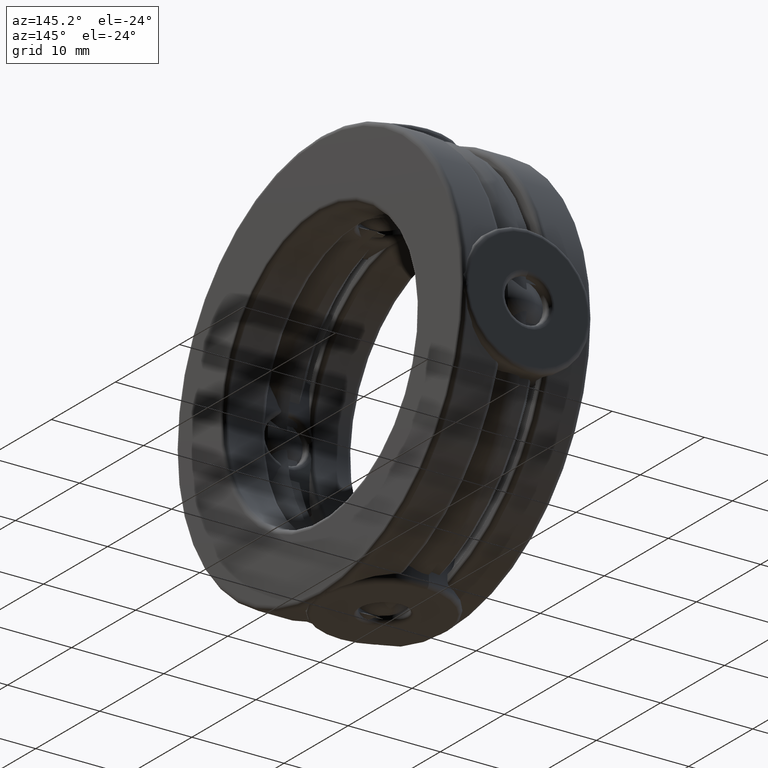
[diagram: clean part render]
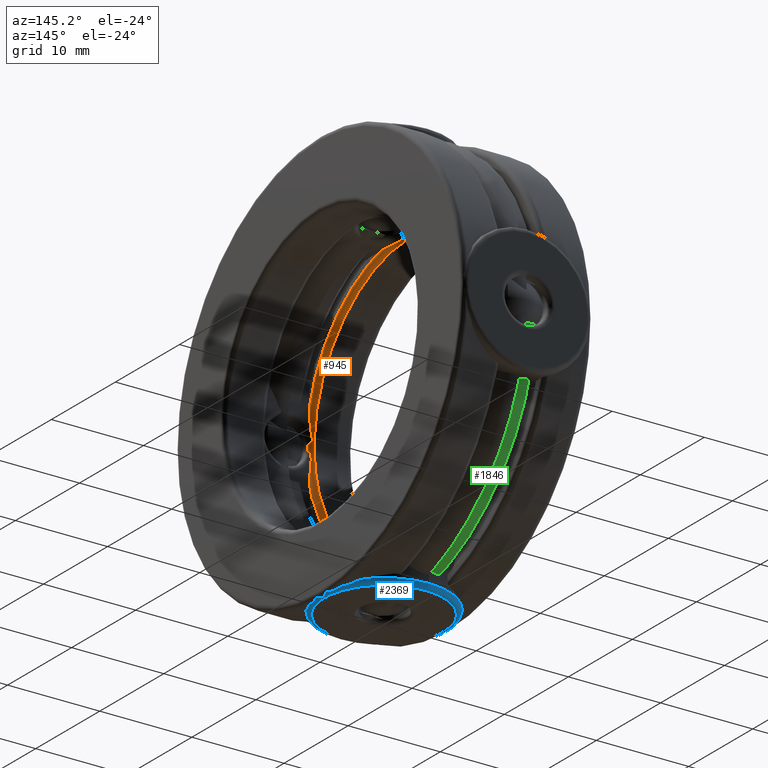
[diagram: same view with three faces highlighted in distinct colors, each labeled with its STEP entity id]
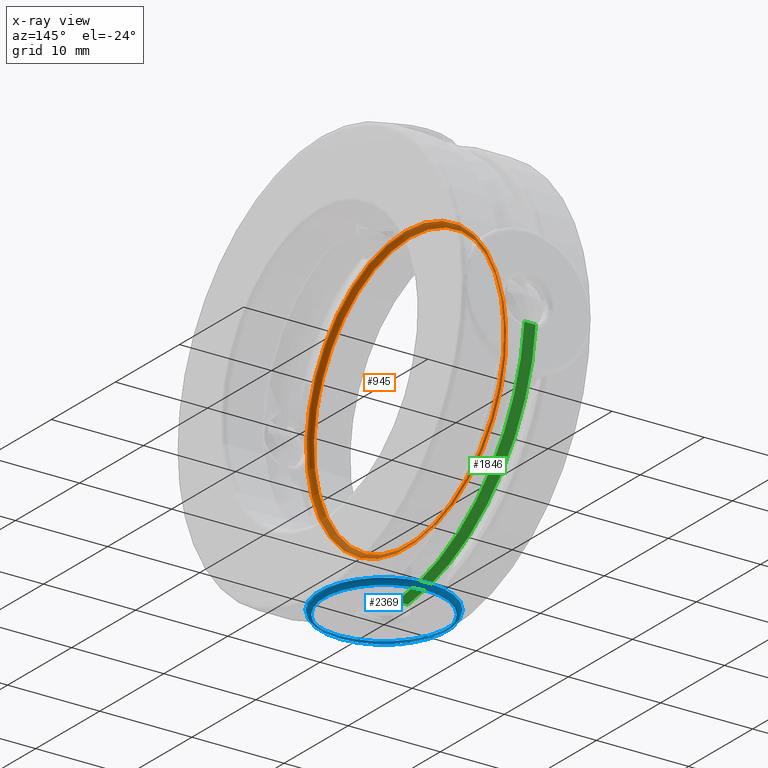
[diagram: x-ray of the same camera — body ghosted, the three highlighted faces saturated]
A machine part, auxiliary view with three faces highlighted in distinct colors.
The next image is the same camera in x-ray (body ghosted, the three faces saturated) — at least one of them is partly hidden behind the body in this view.
Their STEP definitions:

[orange] entity #945 — the highlighted toroidal blend (fillet) surface has major radius 15.5067 mm and minor (blend) radius 0.508 mm.
#50 = AXIS2_PLACEMENT_3D ( 'NONE', #1072, #2809, #1543 ) ;
#277 = TOROIDAL_SURFACE ( 'NONE', #50, 0.6104999999999999300, 0.01999999999999994800 ) ;
#386 = FACE_OUTER_BOUND ( 'NONE', #3199, .T. ) ;
#422 = CIRCLE ( 'NONE', #1214, 0.6104999999999999300 ) ;
#492 = DIRECTION ( 'NONE',  ( -1.000000000000000000, -0.0000000000000000000, -0.0000000000000000000 ) ) ;
#681 = ORIENTED_EDGE ( 'NONE', *, *, #1191, .T. ) ;
#940 = FACE_OUTER_BOUND ( 'NONE', #1569, .T. ) ;
#945 = ADVANCED_FACE ( 'NONE', ( #386, #940 ), #277, .T. ) ;
#1072 = CARTESIAN_POINT ( 'NONE',  ( -0.1118351699999998900, 0.0000000000000000000, 0.0000000000000000000 ) ) ;
#1191 = EDGE_CURVE ( 'NONE', #1517, #1517, #3145, .T. ) ;
#1205 = EDGE_CURVE ( 'NONE', #2630, #2630, #422, .T. ) ;
#1214 = AXIS2_PLACEMENT_3D ( 'NONE', #2197, #492, #1724 ) ;
#1251 = CARTESIAN_POINT ( 'NONE',  ( -0.09183516999999991000, 0.0000000000000000000, 0.6104999999999999300 ) ) ;
#1517 = VERTEX_POINT ( 'NONE', #2494 ) ;
#1543 = DIRECTION ( 'NONE',  ( 0.0000000000000000000, 0.0000000000000000000, 1.000000000000000000 ) ) ;
#1569 = EDGE_LOOP ( 'NONE', ( #681 ) ) ;
#1724 = DIRECTION ( 'NONE',  ( 0.0000000000000000000, 0.0000000000000000000, 1.000000000000000000 ) ) ;
#1979 = DIRECTION ( 'NONE',  ( 0.0000000000000000000, 0.0000000000000000000, 1.000000000000000000 ) ) ;
#2197 = CARTESIAN_POINT ( 'NONE',  ( -0.09183516999999991000, 0.0000000000000000000, 0.0000000000000000000 ) ) ;
#2494 = CARTESIAN_POINT ( 'NONE',  ( -0.1118351699999998900, 0.0000000000000000000, 0.5905000000000000200 ) ) ;
#2517 = AXIS2_PLACEMENT_3D ( 'NONE', #2968, #2930, #1979 ) ;
#2531 = ORIENTED_EDGE ( 'NONE', *, *, #1205, .F. ) ;
#2630 = VERTEX_POINT ( 'NONE', #1251 ) ;
#2809 = DIRECTION ( 'NONE',  ( -1.000000000000000000, -0.0000000000000000000, -0.0000000000000000000 ) ) ;
#2930 = DIRECTION ( 'NONE',  ( -1.000000000000000000, -0.0000000000000000000, -0.0000000000000000000 ) ) ;
#2968 = CARTESIAN_POINT ( 'NONE',  ( -0.1118351699999998900, 0.0000000000000000000, 0.0000000000000000000 ) ) ;
#3145 = CIRCLE ( 'NONE', #2517, 0.5905000000000000200 ) ;
#3199 = EDGE_LOOP ( 'NONE', ( #2531 ) ) ;

[blue] entity #2369 — the highlighted toroidal blend (fillet) surface has major radius 6.4897 mm and minor (blend) radius 0.508 mm.
#147 = CARTESIAN_POINT ( 'NONE',  ( 0.0000000000000000000, -3.023622839438153000E-015, -0.8659999999999998800 ) ) ;
#290 = EDGE_LOOP ( 'NONE', ( #2120 ) ) ;
#658 = AXIS2_PLACEMENT_3D ( 'NONE', #147, #2170, #1650 ) ;
#695 = EDGE_CURVE ( 'NONE', #1397, #1397, #2113, .T. ) ;
#1397 = VERTEX_POINT ( 'NONE', #2205 ) ;
#1622 = DIRECTION ( 'NONE',  ( 0.0000000000000000000, -3.491481338843133400E-015, -1.000000000000000000 ) ) ;
#1650 = DIRECTION ( 'NONE',  ( 0.0000000000000000000, 1.000000000000000000, -3.470587287776738300E-015 ) ) ;
#1894 = VERTEX_POINT ( 'NONE', #2498 ) ;
#2017 = DIRECTION ( 'NONE',  ( 0.0000000000000000000, 1.000000000000000000, -3.491481338843133400E-015 ) ) ;
#2113 = CIRCLE ( 'NONE', #3021, 0.2555000000000006200 ) ;
#2120 = ORIENTED_EDGE ( 'NONE', *, *, #695, .F. ) ;
#2133 = DIRECTION ( 'NONE',  ( 0.0000000000000000000, 1.000000000000000000, -3.742257525567474800E-015 ) ) ;
#2170 = DIRECTION ( 'NONE',  ( 0.0000000000000000000, -3.491481338843133400E-015, -1.000000000000000000 ) ) ;
#2205 = CARTESIAN_POINT ( 'NONE',  ( 0.0000000000000000000, 0.2554999999999975100, -0.8860000000000009000 ) ) ;
#2215 = CIRCLE ( 'NONE', #658, 0.2755000000000001900 ) ;
#2369 = ADVANCED_FACE ( 'NONE', ( #2796, #3223 ), #3060, .T. ) ;
#2498 = CARTESIAN_POINT ( 'NONE',  ( 0.0000000000000000000, 0.2754999999999971400, -0.8660000000000007700 ) ) ;
#2516 = CARTESIAN_POINT ( 'NONE',  ( 0.0000000000000000000, -3.023622839438153000E-015, -0.8659999999999998800 ) ) ;
#2575 = EDGE_LOOP ( 'NONE', ( #2959 ) ) ;
#2796 = FACE_OUTER_BOUND ( 'NONE', #290, .T. ) ;
#2959 = ORIENTED_EDGE ( 'NONE', *, *, #3120, .T. ) ;
#2993 = DIRECTION ( 'NONE',  ( 0.0000000000000000000, -3.491481338843133400E-015, -1.000000000000000000 ) ) ;
#3021 = AXIS2_PLACEMENT_3D ( 'NONE', #3106, #1622, #2133 ) ;
#3060 = TOROIDAL_SURFACE ( 'NONE', #3204, 0.2555000000000006200, 0.01999999999999982000 ) ;
#3106 = CARTESIAN_POINT ( 'NONE',  ( 0.0000000000000000000, -3.093452466215015900E-015, -0.8859999999999999000 ) ) ;
#3120 = EDGE_CURVE ( 'NONE', #1894, #1894, #2215, .T. ) ;
#3204 = AXIS2_PLACEMENT_3D ( 'NONE', #2516, #2993, #2017 ) ;
#3223 = FACE_OUTER_BOUND ( 'NONE', #2575, .T. ) ;

[green] entity #1846 — the highlighted cylindrical surface (partial cylindrical patch) has radius 21.9964 mm, axis along (-1, -0, -0).
#32 = FACE_OUTER_BOUND ( 'NONE', #1918, .T. ) ;
#94 = DIRECTION ( 'NONE',  ( -1.000000000000000000, -0.0000000000000000000, -0.0000000000000000000 ) ) ;
#100 = ORIENTED_EDGE ( 'NONE', *, *, #796, .F. ) ;
#294 = EDGE_CURVE ( 'NONE', #1382, #1095, #1206, .T. ) ;
#397 = ORIENTED_EDGE ( 'NONE', *, *, #294, .T. ) ;
#435 = AXIS2_PLACEMENT_3D ( 'NONE', #1078, #1068, #2327 ) ;
#452 = AXIS2_PLACEMENT_3D ( 'NONE', #1804, #94, #1828 ) ;
#469 = CIRCLE ( 'NONE', #2665, 0.8659999999999998800 ) ;
#471 = DIRECTION ( 'NONE',  ( 0.0000000000000000000, 0.0000000000000000000, 1.000000000000000000 ) ) ;
#635 = CARTESIAN_POINT ( 'NONE',  ( -0.04887500000000001600, 0.07535711238236789100, -0.8627150778868948300 ) ) ;
#777 = CARTESIAN_POINT ( 'NONE',  ( 0.0000000000000000000, 0.8627150778868946100, -0.07535711238236995900 ) ) ;
#796 = EDGE_CURVE ( 'NONE', #2442, #1095, #469, .T. ) ;
#1068 = DIRECTION ( 'NONE',  ( -1.000000000000000000, -0.0000000000000000000, -0.0000000000000000000 ) ) ;
#1078 = CARTESIAN_POINT ( 'NONE',  ( 0.0000000000000000000, 0.0000000000000000000, 0.0000000000000000000 ) ) ;
#1095 = VERTEX_POINT ( 'NONE', #635 ) ;
#1206 = LINE ( 'NONE', #2208, #2565 ) ;
#1239 = VECTOR ( 'NONE', #3144, 39.37007874015748100 ) ;
#1266 = DIRECTION ( 'NONE',  ( -1.000000000000000000, 0.0000000000000000000, 0.0000000000000000000 ) ) ;
#1382 = VERTEX_POINT ( 'NONE', #1386 ) ;
#1386 = CARTESIAN_POINT ( 'NONE',  ( 0.0000000000000000000, 0.07535711238236693400, -0.8627150778868948300 ) ) ;
#1679 = ORIENTED_EDGE ( 'NONE', *, *, #2421, .T. ) ;
#1771 = ORIENTED_EDGE ( 'NONE', *, *, #2793, .T. ) ;
#1804 = CARTESIAN_POINT ( 'NONE',  ( 0.0000000000000000000, 0.0000000000000000000, 0.0000000000000000000 ) ) ;
#1828 = DIRECTION ( 'NONE',  ( 0.0000000000000000000, 0.0000000000000000000, 1.000000000000000000 ) ) ;
#1846 = ADVANCED_FACE ( 'NONE', ( #32 ), #2936, .T. ) ;
#1918 = EDGE_LOOP ( 'NONE', ( #397, #100, #1771, #1679 ) ) ;
#2208 = CARTESIAN_POINT ( 'NONE',  ( -0.02443750000000000800, 0.07535711238236796100, -0.8627150778868947200 ) ) ;
#2327 = DIRECTION ( 'NONE',  ( 0.0000000000000000000, 0.0000000000000000000, 1.000000000000000000 ) ) ;
#2355 = VERTEX_POINT ( 'NONE', #777 ) ;
#2421 = EDGE_CURVE ( 'NONE', #2355, #1382, #2906, .T. ) ;
#2442 = VERTEX_POINT ( 'NONE', #3050 ) ;
#2470 = CARTESIAN_POINT ( 'NONE',  ( -0.04887500000000001600, 0.0000000000000000000, 0.0000000000000000000 ) ) ;
#2565 = VECTOR ( 'NONE', #1266, 39.37007874015748100 ) ;
#2657 = CARTESIAN_POINT ( 'NONE',  ( -0.02443750000000000800, 0.8627150778868945000, -0.07535711238237097200 ) ) ;
#2665 = AXIS2_PLACEMENT_3D ( 'NONE', #2470, #3177, #471 ) ;
#2793 = EDGE_CURVE ( 'NONE', #2442, #2355, #3027, .T. ) ;
#2906 = CIRCLE ( 'NONE', #435, 0.8659999999999998800 ) ;
#2936 = CYLINDRICAL_SURFACE ( 'NONE', #452, 0.8659999999999998800 ) ;
#3027 = LINE ( 'NONE', #2657, #1239 ) ;
#3050 = CARTESIAN_POINT ( 'NONE',  ( -0.04887500000000001600, 0.8627150778868946100, -0.07535711238237100000 ) ) ;
#3144 = DIRECTION ( 'NONE',  ( 1.000000000000000000, 0.0000000000000000000, 0.0000000000000000000 ) ) ;
#3177 = DIRECTION ( 'NONE',  ( -1.000000000000000000, -0.0000000000000000000, -0.0000000000000000000 ) ) ;